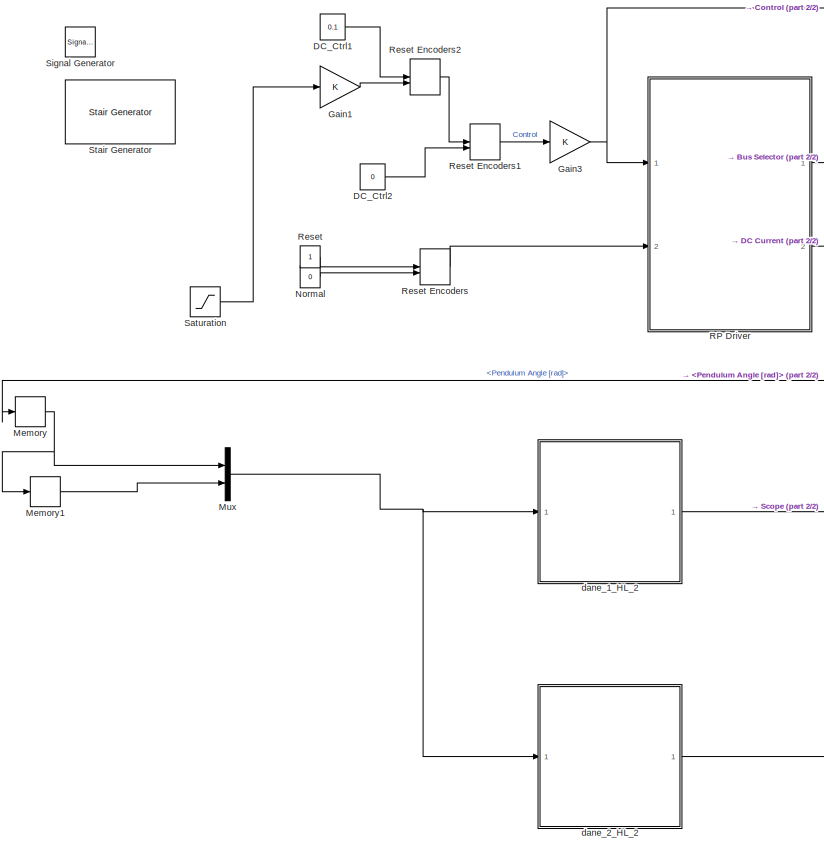
[diagram: root canvas - part 1/2, left side, full height]
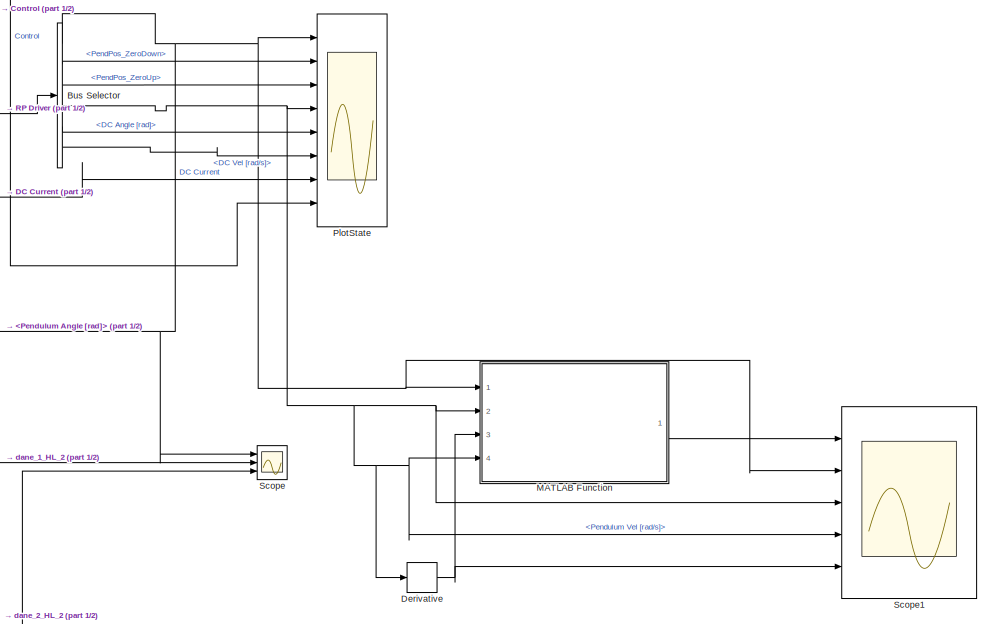
[diagram: root canvas - part 2/2, middle right region]
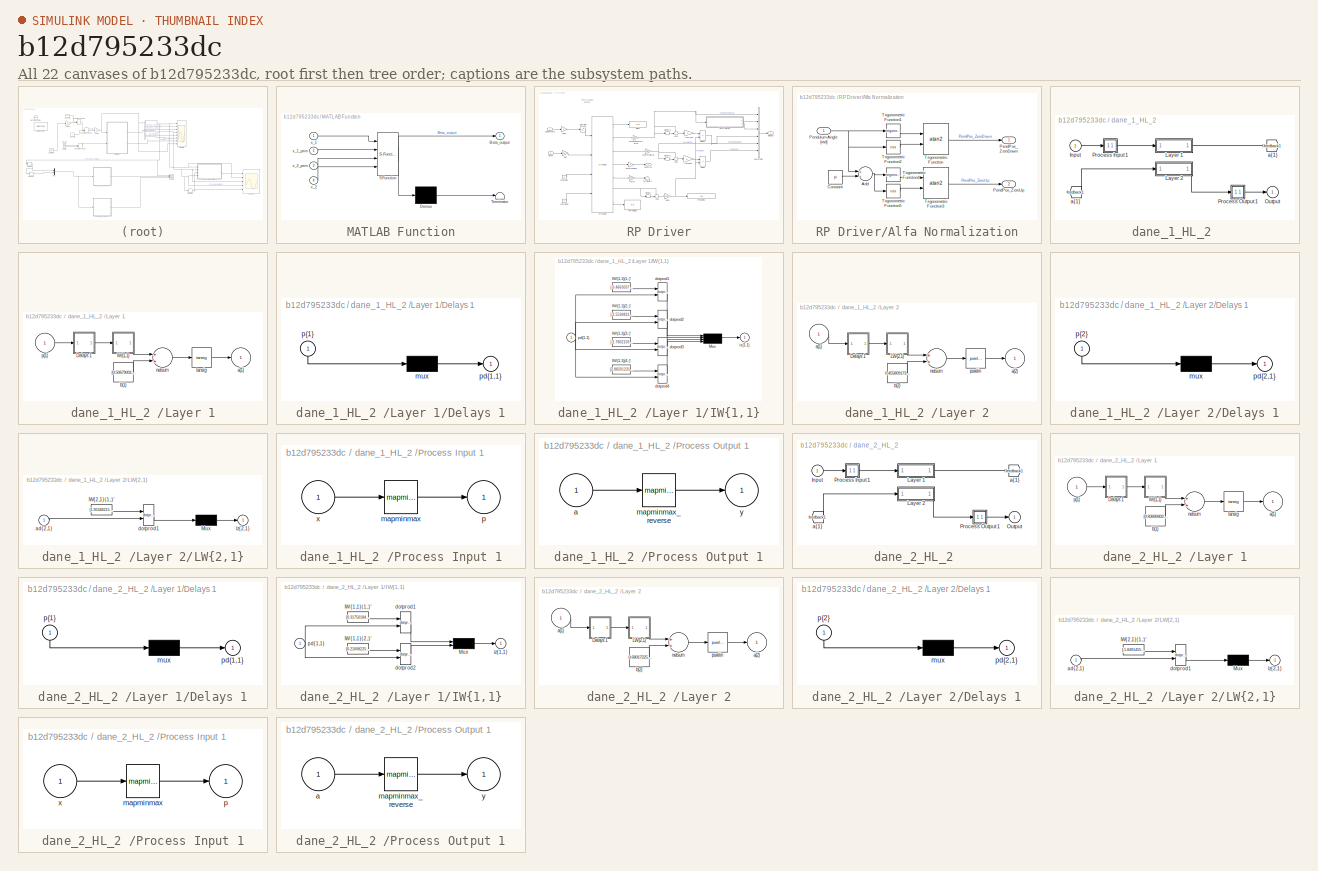
[diagram: thumbnail index - all 22 canvases of the model, root first then tree order]
MODEL slx_b12d795233dc
KIND model
CONFIG AbsTol = auto
CONFIG EnableMultiTasking = on
CONFIG FixedStep = 0.01
CONFIG MaxStep = auto
CONFIG MinStep = auto
CONFIG RelTol = 1e-3
CONFIG SampleTimeConstraint = Unconstrained
CONFIG Solver = FixedStepDiscrete
CONFIG SolverName = FixedStepDiscrete
CONFIG StartTime = 0.0
CONFIG StopTime = 999
BLOCK [BusSelector] Bus Selector
  OutputAsBus = off
  OutputSignals = Pendulum Angle [rad],PendPos_ZeroDown,PendPos_ZeroUp,Pendulum Vel [rad/s],DC Angle [rad],DC Vel [rad/s]
  Ports = [1, 6]
BLOCK [Constant] DC_Ctrl1
  Value = 0.1
BLOCK [Constant] DC_Ctrl2
  Value = 0
BLOCK [Derivative] Derivative
BLOCK [Gain] Gain1
  OutDataTypeStr = Inherit: Inherit via internal rule
  ParamDataTypeStr = Inherit: Inherit via internal rule
  SaturateOnIntegerOverflow = off
BLOCK [Gain] Gain3
  OutDataTypeStr = Inherit: Inherit via internal rule
  ParamDataTypeStr = Inherit: Inherit via internal rule
  SaturateOnIntegerOverflow = off
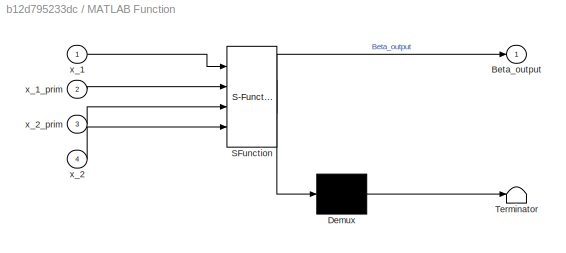
BLOCK [SubSystem] MATLAB Function
  ErrorFcn = Stateflow.Translate.translate
  PermitHierarchicalResolution = ExplicitOnly
  Ports = [4, 1]
  RequestExecContextInheritance = off
  SFBlockType = MATLAB Function
  TreatAsAtomicUnit = on
BLOCK [Demux] MATLAB Function/ Demux 
  Outputs = 1
  Ports = [1, 1]
BLOCK [S-Function] MATLAB Function/ SFunction 
  EnableBusSupport = on
  FunctionName = sf_sfun
  PortCounts = [4 2]
  Ports = [4, 2]
  SFcnIsStateOwnerBlock = off
  SFunctionDeploymentMode = off
  Tag = Stateflow S-Function rpdriver_with_nn 2
BLOCK [Terminator] MATLAB Function/ Terminator 
BLOCK [Outport] MATLAB Function/Beta_output
  IconDisplay = Port number
BLOCK [Inport] MATLAB Function/x_1
  IconDisplay = Port number
BLOCK [Inport] MATLAB Function/x_1_prim
  IconDisplay = Port number
  Port = 2
BLOCK [Inport] MATLAB Function/x_2
  IconDisplay = Port number
  Port = 4
BLOCK [Inport] MATLAB Function/x_2_prim
  IconDisplay = Port number
  Port = 3
BLOCK [Memory] Memory
BLOCK [Memory] Memory1
BLOCK [Mux] Mux
  DisplayOption = bar
  Inputs = 2
  Ports = [2, 1]
BLOCK [Constant] Normal
  Value = 0
BLOCK [Scope] PlotState
  Floating = off
  NumInputPorts = 8
  Ports = [8]
  ScopeSpecificationString = Simulink.scopes.TimeScopeBlockCfg('CurrentConfiguration', extmgr.ConfigurationSet(extmgr.Configuration('Core','General UI',true),extmgr.Configuration('Core','Source UI',true),extmgr.Configuration('Sources','WiredSimulink',true,'DataLoggingVariableName','dane_NN_liczenie_bety','DataLoggingSaveFormat','StructureWithTime','DataLoggingMaxPoints','12000','DataLoggingDecimation','1','DataLoggingDecimate...<+5921ch>
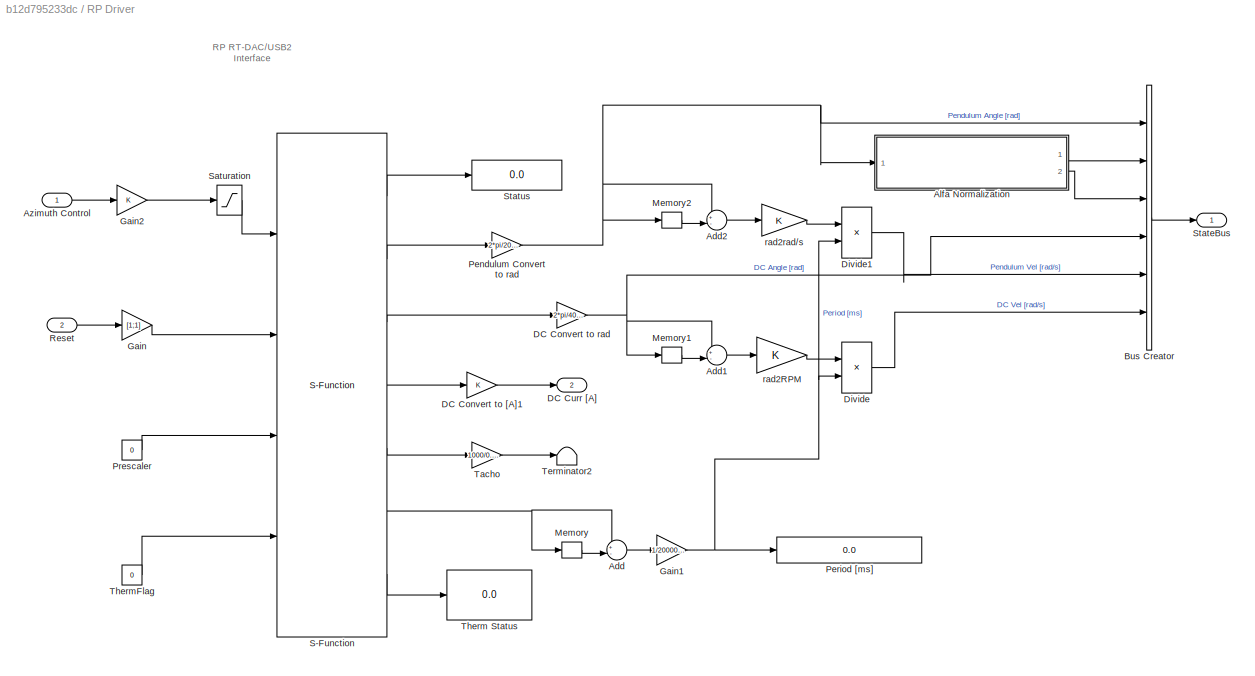
BLOCK [SubSystem] RP Driver
  Ports = [2, 2]
  RequestExecContextInheritance = off
BLOCK [Sum] RP Driver/Add
  IconShape = round
  InputSameDT = off
  Inputs = +-|
  OutDataTypeStr = Inherit: Inherit via internal rule
  Ports = [2, 1]
  SaturateOnIntegerOverflow = off
BLOCK [Sum] RP Driver/Add1
  IconShape = round
  InputSameDT = off
  Inputs = +-|
  OutDataTypeStr = Inherit: Inherit via internal rule
  Ports = [2, 1]
  SaturateOnIntegerOverflow = off
BLOCK [Sum] RP Driver/Add2
  IconShape = round
  InputSameDT = off
  Inputs = +-|
  OutDataTypeStr = Inherit: Inherit via internal rule
  Ports = [2, 1]
  SaturateOnIntegerOverflow = off
BLOCK [SubSystem] RP Driver/Alfa Normalization
  Ports = [1, 2]
  RequestExecContextInheritance = off
BLOCK [Sum] RP Driver/Alfa Normalization/Add
  InputSameDT = off
  OutDataTypeStr = Inherit: Inherit via internal rule
  Ports = [2, 1]
  SaturateOnIntegerOverflow = off
BLOCK [Constant] RP Driver/Alfa Normalization/Constant
  Value = pi
BLOCK [Outport] RP Driver/Alfa Normalization/PendPos_ZeroDown
  IconDisplay = Port number
BLOCK [Outport] RP Driver/Alfa Normalization/PendPos_ZeroUp
  IconDisplay = Port number
  Port = 2
BLOCK [Inport] RP Driver/Alfa Normalization/Pendulum Angle [rad]
  IconDisplay = Port number
BLOCK [Trigonometry] RP Driver/Alfa Normalization/Trigonometric Function
  Operator = atan2
  Ports = [2, 1]
BLOCK [Trigonometry] RP Driver/Alfa Normalization/Trigonometric Function1
  Ports = [1, 1]
BLOCK [Trigonometry] RP Driver/Alfa Normalization/Trigonometric Function2
  Operator = cos
  Ports = [1, 1]
BLOCK [Trigonometry] RP Driver/Alfa Normalization/Trigonometric Function3
  Operator = atan2
  Ports = [2, 1]
BLOCK [Trigonometry] RP Driver/Alfa Normalization/Trigonometric Function4
  Ports = [1, 1]
BLOCK [Trigonometry] RP Driver/Alfa Normalization/Trigonometric Function5
  Operator = cos
  Ports = [1, 1]
BLOCK [Inport] RP Driver/Azimuth Control
  IconDisplay = Port number
BLOCK [BusCreator] RP Driver/Bus Creator
  DisplayOption = bar
  InheritFromInputs = on
  Inputs = 6
  Ports = [6, 1]
BLOCK [Gain] RP Driver/DC Convert to [A]1
BLOCK [Gain] RP Driver/DC Convert to rad
  Gain = 2*pi/4096
BLOCK [Outport] RP Driver/DC Curr [A]
  IconDisplay = Port number
  Port = 2
BLOCK [Product] RP Driver/Divide
  InputSameDT = off
  Inputs = */
  OutDataTypeStr = Inherit: Inherit via internal rule
  Ports = [2, 1]
  RndMeth = Floor
  SaturateOnIntegerOverflow = off
BLOCK [Product] RP Driver/Divide1
  InputSameDT = off
  Inputs = */
  OutDataTypeStr = Inherit: Inherit via internal rule
  Ports = [2, 1]
  RndMeth = Floor
  SaturateOnIntegerOverflow = off
BLOCK [Gain] RP Driver/Gain
  Gain = [1;1]
  OutDataTypeStr = Inherit: Inherit via internal rule
  ParamDataTypeStr = Inherit: Inherit via internal rule
  SaturateOnIntegerOverflow = off
BLOCK [Gain] RP Driver/Gain1
  Gain = 1/20000000
  OutDataTypeStr = Inherit: Inherit via internal rule
  ParamDataTypeStr = Inherit: Inherit via internal rule
  SaturateOnIntegerOverflow = off
BLOCK [Gain] RP Driver/Gain2
  OutDataTypeStr = Inherit: Inherit via internal rule
  ParamDataTypeStr = Inherit: Inherit via internal rule
  SaturateOnIntegerOverflow = off
BLOCK [Memory] RP Driver/Memory
BLOCK [Memory] RP Driver/Memory1
BLOCK [Memory] RP Driver/Memory2
BLOCK [Gain] RP Driver/Pendulum Convert to rad
  Gain = 2*pi/20000
BLOCK [Display] RP Driver/Period [ms]
  Decimation = 1
  Format = long
  Ports = [1]
BLOCK [Constant] RP Driver/Prescaler
  Value = 0
BLOCK [Inport] RP Driver/Reset
  IconDisplay = Port number
  Port = 2
BLOCK [S-Function] RP Driver/S-Function
  EnableBusSupport = off
  FunctionName = rtdacusb2_rpend_dd
  Parameters = 1, 0.01
  Ports = [4, 7]
  SFcnIsStateOwnerBlock = off
  SFunctionDeploymentMode = off
BLOCK [Saturate] RP Driver/Saturation
  InputPortMap = u0
  LowerLimit = -1
  Ports = [1, 1]
  UpperLimit = 1
BLOCK [Outport] RP Driver/StateBus
  IconDisplay = Port number
BLOCK [Display] RP Driver/Status
  Decimation = 1
  Ports = [1]
BLOCK [Gain] RP Driver/Tacho
  Gain = 1000/0.52
BLOCK [Terminator] RP Driver/Terminator2
BLOCK [Display] RP Driver/Therm Status
  Decimation = 1
  Ports = [1]
BLOCK [Constant] RP Driver/ThermFlag
  Value = 0
BLOCK [Gain] RP Driver/rad2RPM
BLOCK [Gain] RP Driver/rad2rad//s
BLOCK [Constant] Reset
BLOCK [ManualSwitch] Reset Encoders
  CurrentSetting = 0
BLOCK [ManualSwitch] Reset Encoders1
  CurrentSetting = 0
BLOCK [ManualSwitch] Reset Encoders2
  CurrentSetting = 0
BLOCK [Saturate] Saturation
  InputPortMap = u0
  LowerLimit = -0.9
  Ports = [1, 1]
  UpperLimit = 0.9
BLOCK [Scope] Scope
  Floating = off
  NumInputPorts = 3
  Ports = [3]
  ScopeSpecificationString = Simulink.scopes.TimeScopeBlockCfg('CurrentConfiguration', extmgr.ConfigurationSet(extmgr.Configuration('Core','General UI',true),extmgr.Configuration('Core','Source UI',true),extmgr.Configuration('Sources','WiredSimulink',true,'DataLoggingVariableName','walidacja_modelu_sieci','DataLogging',true,'DataLoggingSaveFormat','StructureWithTime'),extmgr.Configuration('Visuals','Time Domain',true,'Seriali...<+1558ch>
BLOCK [Scope] Scope1
  Floating = off
  NumInputPorts = 5
  Ports = [5]
  ScopeSpecificationString = Simulink.scopes.TimeScopeBlockCfg('CurrentConfiguration', extmgr.ConfigurationSet(extmgr.Configuration('Core','General UI',true),extmgr.Configuration('Core','Source UI',true),extmgr.Configuration('Sources','WiredSimulink',true,'DataLoggingVariableName','ScopeData1'),extmgr.Configuration('Visuals','Time Domain',true,'SerializedDisplays',{struct('MinYLimReal','-59.93343','MaxYLimReal','143.38714','Y...<+6196ch>
BLOCK [SignalGenerator] Signal Generator
  Amplitude = 0.25
  Frequency = 1/9
  Ports = [0, 1]
  WaveForm = square
BLOCK [Reference] Stair Generator  REF=powerlib_meascontrol/Pulse & Signal
Generators/Stair
Generator
  Commented = on
  Ports = [0, 1]
  SourceBlock = powerlib_meascontrol/Pulse & Signal\nGenerators/Stair\nGenerator
  SourceProductBaseCode = PS
  SourceProductName = Simscape Power Systems
  SourceType = Stair Generator
BLOCK [SubSystem] dane_1_HL_2 
  Ports = [1, 1]
  RequestExecContextInheritance = off
BLOCK [From] dane_1_HL_2 / a{1} 
  GotoTag = feedback1
BLOCK [Inport] dane_1_HL_2 /Input
  IconDisplay = Port number
  PortDimensions = 2
  SampleTime = 0.01
BLOCK [SubSystem] dane_1_HL_2 /Layer 1
  Ports = [1, 1]
  RequestExecContextInheritance = off
BLOCK [SubSystem] dane_1_HL_2 /Layer 1/Delays 1
  Ports = [1, 1]
  RequestExecContextInheritance = off
BLOCK [Mux] dane_1_HL_2 /Layer 1/Delays 1/mux
  Inputs = 1
  Ports = [1, 1]
BLOCK [Outport] dane_1_HL_2 /Layer 1/Delays 1/pd{1,1}
  IconDisplay = Port number
BLOCK [Inport] dane_1_HL_2 /Layer 1/Delays 1/p{1}
  IconDisplay = Port number
  PortDimensions = 2
  SampleTime = 0.01
BLOCK [SubSystem] dane_1_HL_2 /Layer 1/IW{1,1}
  Ports = [1, 1]
  RequestExecContextInheritance = off
BLOCK [Constant] dane_1_HL_2 /Layer 1/IW{1,1}/IW{1,1}(1,:)'
  Value = [-0.466303739642262293774166437287931330502033233642578125;0.96594306525236850458071558023220859467983245849609375]
BLOCK [Constant] dane_1_HL_2 /Layer 1/IW{1,1}/IW{1,1}(2,:)'
  Value = [-1.55268314583509603465927284560166299343109130859375;2.943114096559206860348467671428807079792022705078125]
BLOCK [Constant] dane_1_HL_2 /Layer 1/IW{1,1}/IW{1,1}(3,:)'
  Value = [-1.780215091870313681710058517637662589550018310546875;-0.659402923602290247373503007111139595508575439453125]
BLOCK [Constant] dane_1_HL_2 /Layer 1/IW{1,1}/IW{1,1}(4,:)'
  Value = [2.88201231265911861356698864256031811237335205078125;-0.683979171490019410839522606693208217620849609375]
BLOCK [Mux] dane_1_HL_2 /Layer 1/IW{1,1}/Mux
  Ports = [4, 1]
BLOCK [Reference] dane_1_HL_2 /Layer 1/IW{1,1}/dotprod1  REF=neural/Weight Functions/dotprod
  Ports = [2, 1]
  SourceBlock = neural/Weight Functions/dotprod
  SourceProductBaseCode = NN
  SourceProductName = Neural Network Toolbox
  SourceType = DOTPROD
BLOCK [Reference] dane_1_HL_2 /Layer 1/IW{1,1}/dotprod2  REF=neural/Weight Functions/dotprod
  Ports = [2, 1]
  SourceBlock = neural/Weight Functions/dotprod
  SourceProductBaseCode = NN
  SourceProductName = Neural Network Toolbox
  SourceType = DOTPROD
BLOCK [Reference] dane_1_HL_2 /Layer 1/IW{1,1}/dotprod3  REF=neural/Weight Functions/dotprod
  Ports = [2, 1]
  SourceBlock = neural/Weight Functions/dotprod
  SourceProductBaseCode = NN
  SourceProductName = Neural Network Toolbox
  SourceType = DOTPROD
BLOCK [Reference] dane_1_HL_2 /Layer 1/IW{1,1}/dotprod4  REF=neural/Weight Functions/dotprod
  Ports = [2, 1]
  SourceBlock = neural/Weight Functions/dotprod
  SourceProductBaseCode = NN
  SourceProductName = Neural Network Toolbox
  SourceType = DOTPROD
BLOCK [Outport] dane_1_HL_2 /Layer 1/IW{1,1}/iz{1,1}
  IconDisplay = Port number
BLOCK [Inport] dane_1_HL_2 /Layer 1/IW{1,1}/pd{1,1}
  IconDisplay = Port number
  PortDimensions = 2
  SampleTime = 0.01
BLOCK [Outport] dane_1_HL_2 /Layer 1/a{1}
  IconDisplay = Port number
  InitialOutput = [0;0;0;0]
BLOCK [Constant] dane_1_HL_2 /Layer 1/b{1}
  Value = [0.5067900146138837325082704410306178033351898193359375;-0.86413407894146565535464787899400107562541961669921875;-0.39424585760358177299877979748998768627643585205078125;-3.8565998867119173354467420722357928752899169921875]
BLOCK [Sum] dane_1_HL_2 /Layer 1/netsum
  Inputs = 2
  Ports = [2, 1]
BLOCK [Inport] dane_1_HL_2 /Layer 1/p{1}
  IconDisplay = Port number
  PortDimensions = 2
  SampleTime = 0.01
BLOCK [Reference] dane_1_HL_2 /Layer 1/tansig  REF=neural/Transfer Functions/tansig
  Ports = [1, 1]
  SourceBlock = neural/Transfer Functions/tansig
  SourceProductBaseCode = NN
  SourceProductName = Neural Network Toolbox
  SourceType = TANSIG
BLOCK [SubSystem] dane_1_HL_2 /Layer 2
  Ports = [1, 1]
  RequestExecContextInheritance = off
BLOCK [SubSystem] dane_1_HL_2 /Layer 2/Delays 1
  Ports = [1, 1]
  RequestExecContextInheritance = off
BLOCK [Mux] dane_1_HL_2 /Layer 2/Delays 1/mux
  Inputs = 1
  Ports = [1, 1]
BLOCK [Outport] dane_1_HL_2 /Layer 2/Delays 1/pd{2,1}
  IconDisplay = Port number
BLOCK [Inport] dane_1_HL_2 /Layer 2/Delays 1/p{2}
  IconDisplay = Port number
  PortDimensions = 4
  SampleTime = 0.01
BLOCK [SubSystem] dane_1_HL_2 /Layer 2/LW{2,1}
  Ports = [1, 1]
  RequestExecContextInheritance = off
BLOCK [Constant] dane_1_HL_2 /Layer 2/LW{2,1}/IW{2,1}(1,:)'
  Value = [1.9534821513318345598264613727224059402942657470703125;0.2772406769403119586314687694539315998554229736328125;-0.0161124272243524553627214146445112419314682483673095703125;1.182343962777292478705248868209309875965118408203125]
BLOCK [Mux] dane_1_HL_2 /Layer 2/LW{2,1}/Mux
  Inputs = 1
  Ports = [1, 1]
BLOCK [Inport] dane_1_HL_2 /Layer 2/LW{2,1}/ad{2,1}
  IconDisplay = Port number
  PortDimensions = 4
  SampleTime = 0.01
BLOCK [Reference] dane_1_HL_2 /Layer 2/LW{2,1}/dotprod1  REF=neural/Weight Functions/dotprod
  Ports = [2, 1]
  SourceBlock = neural/Weight Functions/dotprod
  SourceProductBaseCode = NN
  SourceProductName = Neural Network Toolbox
  SourceType = DOTPROD
BLOCK [Outport] dane_1_HL_2 /Layer 2/LW{2,1}/lz{2,1}
  IconDisplay = Port number
BLOCK [Inport] dane_1_HL_2 /Layer 2/a{1} 
  IconDisplay = Port number
  PortDimensions = 4
  SampleTime = 0.01
BLOCK [Outport] dane_1_HL_2 /Layer 2/a{2}
  IconDisplay = Port number
  InitialOutput = 0
BLOCK [Constant] dane_1_HL_2 /Layer 2/b{2}
  Value = 0.455809173642511555879508478028583340346813201904296875
BLOCK [Sum] dane_1_HL_2 /Layer 2/netsum
  Inputs = 2
  Ports = [2, 1]
BLOCK [Reference] dane_1_HL_2 /Layer 2/purelin  REF=neural/Transfer Functions/purelin
  Ports = [1, 1]
  SourceBlock = neural/Transfer Functions/purelin
  SourceProductBaseCode = NN
  SourceProductName = Neural Network Toolbox
  SourceType = PURELIN
BLOCK [Outport] dane_1_HL_2 /Output
  IconDisplay = Port number
  InitialOutput = 0
BLOCK [SubSystem] dane_1_HL_2 /Process Input 1
  Ports = [1, 1]
  RequestExecContextInheritance = off
BLOCK [Reference] dane_1_HL_2 /Process Input 1/mapminmax  REF=neural/Processing Functions/mapminmax
  Ports = [1, 1]
  SourceBlock = neural/Processing Functions/mapminmax
  SourceProductBaseCode = NN
  SourceProductName = Neural Network Toolbox
  SourceType = MAPMINMAX Preprocess
BLOCK [Outport] dane_1_HL_2 /Process Input 1/p
  IconDisplay = Port number
  PortDimensions = 2
  SampleTime = 0.01
BLOCK [Inport] dane_1_HL_2 /Process Input 1/x
  IconDisplay = Port number
  PortDimensions = 2
  SampleTime = 0.01
BLOCK [SubSystem] dane_1_HL_2 /Process Output 1
  Ports = [1, 1]
  RequestExecContextInheritance = off
BLOCK [Inport] dane_1_HL_2 /Process Output 1/a
  IconDisplay = Port number
  PortDimensions = 1
  SampleTime = 0.01
BLOCK [Reference] dane_1_HL_2 /Process Output 1/mapminmax_reverse  REF=neural/Processing Functions/mapminmax_reverse
  Ports = [1, 1]
  SourceBlock = neural/Processing Functions/mapminmax_reverse
  SourceProductBaseCode = NN
  SourceProductName = Neural Network Toolbox
  SourceType = MAPMINMAX Reverse Process
BLOCK [Outport] dane_1_HL_2 /Process Output 1/y
  IconDisplay = Port number
  PortDimensions = 1
  SampleTime = 0.01
BLOCK [Goto] dane_1_HL_2 /a{1}
  GotoTag = feedback1
BLOCK [SubSystem] dane_2_HL_2 
  Ports = [1, 1]
  RequestExecContextInheritance = off
BLOCK [From] dane_2_HL_2 / a{1} 
  GotoTag = feedback1
BLOCK [Inport] dane_2_HL_2 /Input
  IconDisplay = Port number
  PortDimensions = 2
  SampleTime = 0.01
BLOCK [SubSystem] dane_2_HL_2 /Layer 1
  Ports = [1, 1]
  RequestExecContextInheritance = off
BLOCK [SubSystem] dane_2_HL_2 /Layer 1/Delays 1
  Ports = [1, 1]
  RequestExecContextInheritance = off
BLOCK [Mux] dane_2_HL_2 /Layer 1/Delays 1/mux
  Inputs = 1
  Ports = [1, 1]
BLOCK [Outport] dane_2_HL_2 /Layer 1/Delays 1/pd{1,1}
  IconDisplay = Port number
BLOCK [Inport] dane_2_HL_2 /Layer 1/Delays 1/p{1}
  IconDisplay = Port number
  PortDimensions = 2
  SampleTime = 0.01
BLOCK [SubSystem] dane_2_HL_2 /Layer 1/IW{1,1}
  Ports = [1, 1]
  RequestExecContextInheritance = off
BLOCK [Constant] dane_2_HL_2 /Layer 1/IW{1,1}/IW{1,1}(1,:)'
  Value = [0.317501847104528611698270879060146398842334747314453125;-0.63437724697761022074615766541683115065097808837890625]
BLOCK [Constant] dane_2_HL_2 /Layer 1/IW{1,1}/IW{1,1}(2,:)'
  Value = [0.2100822536402155715773432120840880088508129119873046875;-0.420616928478684315440006002972950227558612823486328125]
BLOCK [Mux] dane_2_HL_2 /Layer 1/IW{1,1}/Mux
  Inputs = 2
  Ports = [2, 1]
BLOCK [Reference] dane_2_HL_2 /Layer 1/IW{1,1}/dotprod1  REF=neural/Weight Functions/dotprod
  Ports = [2, 1]
  SourceBlock = neural/Weight Functions/dotprod
  SourceProductBaseCode = NN
  SourceProductName = Neural Network Toolbox
  SourceType = DOTPROD
BLOCK [Reference] dane_2_HL_2 /Layer 1/IW{1,1}/dotprod2  REF=neural/Weight Functions/dotprod
  Ports = [2, 1]
  SourceBlock = neural/Weight Functions/dotprod
  SourceProductBaseCode = NN
  SourceProductName = Neural Network Toolbox
  SourceType = DOTPROD
BLOCK [Outport] dane_2_HL_2 /Layer 1/IW{1,1}/iz{1,1}
  IconDisplay = Port number
BLOCK [Inport] dane_2_HL_2 /Layer 1/IW{1,1}/pd{1,1}
  IconDisplay = Port number
  PortDimensions = 2
  SampleTime = 0.01
BLOCK [Outport] dane_2_HL_2 /Layer 1/a{1}
  IconDisplay = Port number
  InitialOutput = [0;0]
BLOCK [Constant] dane_2_HL_2 /Layer 1/b{1}
  Value = [0.83689402231300424883642108397907577455043792724609375;-0.50502772206030532853304748641676269471645355224609375]
BLOCK [Sum] dane_2_HL_2 /Layer 1/netsum
  Inputs = 2
  Ports = [2, 1]
BLOCK [Inport] dane_2_HL_2 /Layer 1/p{1}
  IconDisplay = Port number
  PortDimensions = 2
  SampleTime = 0.01
BLOCK [Reference] dane_2_HL_2 /Layer 1/tansig  REF=neural/Transfer Functions/tansig
  Ports = [1, 1]
  SourceBlock = neural/Transfer Functions/tansig
  SourceProductBaseCode = NN
  SourceProductName = Neural Network Toolbox
  SourceType = TANSIG
BLOCK [SubSystem] dane_2_HL_2 /Layer 2
  Ports = [1, 1]
  RequestExecContextInheritance = off
BLOCK [SubSystem] dane_2_HL_2 /Layer 2/Delays 1
  Ports = [1, 1]
  RequestExecContextInheritance = off
BLOCK [Mux] dane_2_HL_2 /Layer 2/Delays 1/mux
  Inputs = 1
  Ports = [1, 1]
BLOCK [Outport] dane_2_HL_2 /Layer 2/Delays 1/pd{2,1}
  IconDisplay = Port number
BLOCK [Inport] dane_2_HL_2 /Layer 2/Delays 1/p{2}
  IconDisplay = Port number
  PortDimensions = 2
  SampleTime = 0.01
BLOCK [SubSystem] dane_2_HL_2 /Layer 2/LW{2,1}
  Ports = [1, 1]
  RequestExecContextInheritance = off
BLOCK [Constant] dane_2_HL_2 /Layer 2/LW{2,1}/IW{2,1}(1,:)'
  Value = [-1.84914557638342191836500205681659281253814697265625;-4.173814275745581170440345886163413524627685546875]
BLOCK [Mux] dane_2_HL_2 /Layer 2/LW{2,1}/Mux
  Inputs = 1
  Ports = [1, 1]
BLOCK [Inport] dane_2_HL_2 /Layer 2/LW{2,1}/ad{2,1}
  IconDisplay = Port number
  PortDimensions = 2
  SampleTime = 0.01
BLOCK [Reference] dane_2_HL_2 /Layer 2/LW{2,1}/dotprod1  REF=neural/Weight Functions/dotprod
  Ports = [2, 1]
  SourceBlock = neural/Weight Functions/dotprod
  SourceProductBaseCode = NN
  SourceProductName = Neural Network Toolbox
  SourceType = DOTPROD
BLOCK [Outport] dane_2_HL_2 /Layer 2/LW{2,1}/lz{2,1}
  IconDisplay = Port number
BLOCK [Inport] dane_2_HL_2 /Layer 2/a{1} 
  IconDisplay = Port number
  PortDimensions = 2
  SampleTime = 0.01
BLOCK [Outport] dane_2_HL_2 /Layer 2/a{2}
  IconDisplay = Port number
  InitialOutput = 0
BLOCK [Constant] dane_2_HL_2 /Layer 2/b{2}
  Value = -0.6801722526561981840842463498120196163654327392578125
BLOCK [Sum] dane_2_HL_2 /Layer 2/netsum
  Inputs = 2
  Ports = [2, 1]
BLOCK [Reference] dane_2_HL_2 /Layer 2/purelin  REF=neural/Transfer Functions/purelin
  Ports = [1, 1]
  SourceBlock = neural/Transfer Functions/purelin
  SourceProductBaseCode = NN
  SourceProductName = Neural Network Toolbox
  SourceType = PURELIN
BLOCK [Outport] dane_2_HL_2 /Output
  IconDisplay = Port number
  InitialOutput = 0
BLOCK [SubSystem] dane_2_HL_2 /Process Input 1
  Ports = [1, 1]
  RequestExecContextInheritance = off
BLOCK [Reference] dane_2_HL_2 /Process Input 1/mapminmax  REF=neural/Processing Functions/mapminmax
  Ports = [1, 1]
  SourceBlock = neural/Processing Functions/mapminmax
  SourceProductBaseCode = NN
  SourceProductName = Neural Network Toolbox
  SourceType = MAPMINMAX Preprocess
BLOCK [Outport] dane_2_HL_2 /Process Input 1/p
  IconDisplay = Port number
  PortDimensions = 2
  SampleTime = 0.01
BLOCK [Inport] dane_2_HL_2 /Process Input 1/x
  IconDisplay = Port number
  PortDimensions = 2
  SampleTime = 0.01
BLOCK [SubSystem] dane_2_HL_2 /Process Output 1
  Ports = [1, 1]
  RequestExecContextInheritance = off
BLOCK [Inport] dane_2_HL_2 /Process Output 1/a
  IconDisplay = Port number
  PortDimensions = 1
  SampleTime = 0.01
BLOCK [Reference] dane_2_HL_2 /Process Output 1/mapminmax_reverse  REF=neural/Processing Functions/mapminmax_reverse
  Ports = [1, 1]
  SourceBlock = neural/Processing Functions/mapminmax_reverse
  SourceProductBaseCode = NN
  SourceProductName = Neural Network Toolbox
  SourceType = MAPMINMAX Reverse Process
BLOCK [Outport] dane_2_HL_2 /Process Output 1/y
  IconDisplay = Port number
  PortDimensions = 1
  SampleTime = 0.01
BLOCK [Goto] dane_2_HL_2 /a{1}
  GotoTag = feedback1
ANNOTATION RP Driver: RP RT-DAC/USB2 Interface
NET Bus Selector:1 -> MATLAB Function:1, Memory:1, PlotState:1, Scope1:2, Scope:1
LINE Bus Selector:2 -> PlotState:2
LINE Bus Selector:3 -> PlotState:3
NET Bus Selector:4 -> Derivative:1, MATLAB Function:2, MATLAB Function:4, PlotState:4, Scope1:3, Scope1:4
LINE Bus Selector:5 -> PlotState:5
LINE Bus Selector:6 -> PlotState:6
LINE DC_Ctrl1:1 -> Reset Encoders2:1
LINE DC_Ctrl2:1 -> Reset Encoders1:2
NET Derivative:1 -> MATLAB Function:3, Scope1:5
LINE Gain1:1 -> Reset Encoders2:2
NET Gain3:1 -> PlotState:8, RP Driver:1
LINE MATLAB Function:1 -> Scope1:1
LINE Memory1:1 -> Mux:2
NET Memory:1 -> Memory1:1, Mux:1
NET Mux:1 -> dane_1_HL_2 :1, dane_2_HL_2 :1
LINE Normal:1 -> Reset Encoders:2
LINE RP Driver/Add1:1 -> RP Driver/rad2RPM:1
LINE RP Driver/Add2:1 -> RP Driver/rad2rad//s:1
LINE RP Driver/Add:1 -> RP Driver/Gain1:1
NET RP Driver/Alfa Normalization/Add:1 -> RP Driver/Alfa Normalization/Trigonometric Function4:1, RP Driver/Alfa Normalization/Trigonometric Function5:1
LINE RP Driver/Alfa Normalization/Constant:1 -> RP Driver/Alfa Normalization/Add:2
NET RP Driver/Alfa Normalization/Pendulum Angle [rad]:1 -> RP Driver/Alfa Normalization/Add:1, RP Driver/Alfa Normalization/Trigonometric Function1:1, RP Driver/Alfa Normalization/Trigonometric Function2:1
LINE RP Driver/Alfa Normalization/Trigonometric Function1:1 -> RP Driver/Alfa Normalization/Trigonometric Function:1
LINE RP Driver/Alfa Normalization/Trigonometric Function2:1 -> RP Driver/Alfa Normalization/Trigonometric Function:2
LINE RP Driver/Alfa Normalization/Trigonometric Function3:1 -> RP Driver/Alfa Normalization/PendPos_ZeroUp:1
LINE RP Driver/Alfa Normalization/Trigonometric Function4:1 -> RP Driver/Alfa Normalization/Trigonometric Function3:1
LINE RP Driver/Alfa Normalization/Trigonometric Function5:1 -> RP Driver/Alfa Normalization/Trigonometric Function3:2
LINE RP Driver/Alfa Normalization/Trigonometric Function:1 -> RP Driver/Alfa Normalization/PendPos_ZeroDown:1
LINE RP Driver/Alfa Normalization:1 -> RP Driver/Bus Creator:2
LINE RP Driver/Alfa Normalization:2 -> RP Driver/Bus Creator:3
LINE RP Driver/Azimuth Control:1 -> RP Driver/Gain2:1
LINE RP Driver/Bus Creator:1 -> RP Driver/StateBus:1
LINE RP Driver/DC Convert to [A]1:1 -> RP Driver/DC Curr [A]:1
NET RP Driver/DC Convert to rad:1 -> RP Driver/Add1:1, RP Driver/Bus Creator:4, RP Driver/Memory1:1
LINE RP Driver/Divide1:1 -> RP Driver/Bus Creator:5
LINE RP Driver/Divide:1 -> RP Driver/Bus Creator:6
NET RP Driver/Gain1:1 -> RP Driver/Divide1:2, RP Driver/Divide:2, RP Driver/Period [ms]:1
LINE RP Driver/Gain2:1 -> RP Driver/Saturation:1
LINE RP Driver/Gain:1 -> RP Driver/S-Function:2
LINE RP Driver/Memory1:1 -> RP Driver/Add1:2
LINE RP Driver/Memory2:1 -> RP Driver/Add2:2
LINE RP Driver/Memory:1 -> RP Driver/Add:2
NET RP Driver/Pendulum Convert to rad:1 -> RP Driver/Add2:1, RP Driver/Alfa Normalization:1, RP Driver/Bus Creator:1, RP Driver/Memory2:1
LINE RP Driver/Prescaler:1 -> RP Driver/S-Function:3
LINE RP Driver/Reset:1 -> RP Driver/Gain:1
LINE RP Driver/S-Function:1 -> RP Driver/Status:1
LINE RP Driver/S-Function:2 -> RP Driver/Pendulum Convert to rad:1
LINE RP Driver/S-Function:3 -> RP Driver/DC Convert to rad:1
LINE RP Driver/S-Function:4 -> RP Driver/DC Convert to [A]1:1
LINE RP Driver/S-Function:5 -> RP Driver/Tacho:1
NET RP Driver/S-Function:6 -> RP Driver/Add:1, RP Driver/Memory:1
LINE RP Driver/S-Function:7 -> RP Driver/Therm Status:1
LINE RP Driver/Saturation:1 -> RP Driver/S-Function:1
LINE RP Driver/Tacho:1 -> RP Driver/Terminator2:1
LINE RP Driver/ThermFlag:1 -> RP Driver/S-Function:4
LINE RP Driver/rad2RPM:1 -> RP Driver/Divide:1
LINE RP Driver/rad2rad//s:1 -> RP Driver/Divide1:1
LINE RP Driver:1 -> Bus Selector:1
LINE RP Driver:2 -> PlotState:7
LINE Reset Encoders1:1 -> Gain3:1
LINE Reset Encoders2:1 -> Reset Encoders1:1
LINE Reset Encoders:1 -> RP Driver:2
LINE Reset:1 -> Reset Encoders:1
LINE Saturation:1 -> Gain1:1
LINE dane_1_HL_2 / a{1} :1 -> dane_1_HL_2 /Layer 2:1
LINE dane_1_HL_2 /Input:1 -> dane_1_HL_2 /Process Input 1:1
LINE dane_1_HL_2 /Layer 1/Delays 1/mux:1 -> dane_1_HL_2 /Layer 1/Delays 1/pd{1,1}:1
LINE dane_1_HL_2 /Layer 1/Delays 1/p{1}:1 -> dane_1_HL_2 /Layer 1/Delays 1/mux:1
LINE dane_1_HL_2 /Layer 1/Delays 1:1 -> dane_1_HL_2 /Layer 1/IW{1,1}:1
LINE dane_1_HL_2 /Layer 1/IW{1,1}/IW{1,1}(1,:)':1 -> dane_1_HL_2 /Layer 1/IW{1,1}/dotprod1:1
LINE dane_1_HL_2 /Layer 1/IW{1,1}/IW{1,1}(2,:)':1 -> dane_1_HL_2 /Layer 1/IW{1,1}/dotprod2:1
LINE dane_1_HL_2 /Layer 1/IW{1,1}/IW{1,1}(3,:)':1 -> dane_1_HL_2 /Layer 1/IW{1,1}/dotprod3:1
LINE dane_1_HL_2 /Layer 1/IW{1,1}/IW{1,1}(4,:)':1 -> dane_1_HL_2 /Layer 1/IW{1,1}/dotprod4:1
LINE dane_1_HL_2 /Layer 1/IW{1,1}/Mux:1 -> dane_1_HL_2 /Layer 1/IW{1,1}/iz{1,1}:1
LINE dane_1_HL_2 /Layer 1/IW{1,1}/dotprod1:1 -> dane_1_HL_2 /Layer 1/IW{1,1}/Mux:1
LINE dane_1_HL_2 /Layer 1/IW{1,1}/dotprod2:1 -> dane_1_HL_2 /Layer 1/IW{1,1}/Mux:2
LINE dane_1_HL_2 /Layer 1/IW{1,1}/dotprod3:1 -> dane_1_HL_2 /Layer 1/IW{1,1}/Mux:3
LINE dane_1_HL_2 /Layer 1/IW{1,1}/dotprod4:1 -> dane_1_HL_2 /Layer 1/IW{1,1}/Mux:4
NET dane_1_HL_2 /Layer 1/IW{1,1}/pd{1,1}:1 -> dane_1_HL_2 /Layer 1/IW{1,1}/dotprod1:2, dane_1_HL_2 /Layer 1/IW{1,1}/dotprod2:2, dane_1_HL_2 /Layer 1/IW{1,1}/dotprod3:2, dane_1_HL_2 /Layer 1/IW{1,1}/dotprod4:2
LINE dane_1_HL_2 /Layer 1/IW{1,1}:1 -> dane_1_HL_2 /Layer 1/netsum:1
LINE dane_1_HL_2 /Layer 1/b{1}:1 -> dane_1_HL_2 /Layer 1/netsum:2
LINE dane_1_HL_2 /Layer 1/netsum:1 -> dane_1_HL_2 /Layer 1/tansig:1
LINE dane_1_HL_2 /Layer 1/p{1}:1 -> dane_1_HL_2 /Layer 1/Delays 1:1
LINE dane_1_HL_2 /Layer 1/tansig:1 -> dane_1_HL_2 /Layer 1/a{1}:1
LINE dane_1_HL_2 /Layer 1:1 -> dane_1_HL_2 /a{1}:1
LINE dane_1_HL_2 /Layer 2/Delays 1/mux:1 -> dane_1_HL_2 /Layer 2/Delays 1/pd{2,1}:1
LINE dane_1_HL_2 /Layer 2/Delays 1/p{2}:1 -> dane_1_HL_2 /Layer 2/Delays 1/mux:1
LINE dane_1_HL_2 /Layer 2/Delays 1:1 -> dane_1_HL_2 /Layer 2/LW{2,1}:1
LINE dane_1_HL_2 /Layer 2/LW{2,1}/IW{2,1}(1,:)':1 -> dane_1_HL_2 /Layer 2/LW{2,1}/dotprod1:1
LINE dane_1_HL_2 /Layer 2/LW{2,1}/Mux:1 -> dane_1_HL_2 /Layer 2/LW{2,1}/lz{2,1}:1
LINE dane_1_HL_2 /Layer 2/LW{2,1}/ad{2,1}:1 -> dane_1_HL_2 /Layer 2/LW{2,1}/dotprod1:2
LINE dane_1_HL_2 /Layer 2/LW{2,1}/dotprod1:1 -> dane_1_HL_2 /Layer 2/LW{2,1}/Mux:1
LINE dane_1_HL_2 /Layer 2/LW{2,1}:1 -> dane_1_HL_2 /Layer 2/netsum:1
LINE dane_1_HL_2 /Layer 2/a{1} :1 -> dane_1_HL_2 /Layer 2/Delays 1:1
LINE dane_1_HL_2 /Layer 2/b{2}:1 -> dane_1_HL_2 /Layer 2/netsum:2
LINE dane_1_HL_2 /Layer 2/netsum:1 -> dane_1_HL_2 /Layer 2/purelin:1
LINE dane_1_HL_2 /Layer 2/purelin:1 -> dane_1_HL_2 /Layer 2/a{2}:1
LINE dane_1_HL_2 /Layer 2:1 -> dane_1_HL_2 /Process Output 1:1
LINE dane_1_HL_2 /Process Input 1/mapminmax:1 -> dane_1_HL_2 /Process Input 1/p:1
LINE dane_1_HL_2 /Process Input 1/x:1 -> dane_1_HL_2 /Process Input 1/mapminmax:1
LINE dane_1_HL_2 /Process Input 1:1 -> dane_1_HL_2 /Layer 1:1
LINE dane_1_HL_2 /Process Output 1/a:1 -> dane_1_HL_2 /Process Output 1/mapminmax_reverse:1
LINE dane_1_HL_2 /Process Output 1/mapminmax_reverse:1 -> dane_1_HL_2 /Process Output 1/y:1
LINE dane_1_HL_2 /Process Output 1:1 -> dane_1_HL_2 /Output:1
LINE dane_1_HL_2 :1 -> Scope:2
LINE dane_2_HL_2 / a{1} :1 -> dane_2_HL_2 /Layer 2:1
LINE dane_2_HL_2 /Input:1 -> dane_2_HL_2 /Process Input 1:1
LINE dane_2_HL_2 /Layer 1/Delays 1/mux:1 -> dane_2_HL_2 /Layer 1/Delays 1/pd{1,1}:1
LINE dane_2_HL_2 /Layer 1/Delays 1/p{1}:1 -> dane_2_HL_2 /Layer 1/Delays 1/mux:1
LINE dane_2_HL_2 /Layer 1/Delays 1:1 -> dane_2_HL_2 /Layer 1/IW{1,1}:1
LINE dane_2_HL_2 /Layer 1/IW{1,1}/IW{1,1}(1,:)':1 -> dane_2_HL_2 /Layer 1/IW{1,1}/dotprod1:1
LINE dane_2_HL_2 /Layer 1/IW{1,1}/IW{1,1}(2,:)':1 -> dane_2_HL_2 /Layer 1/IW{1,1}/dotprod2:1
LINE dane_2_HL_2 /Layer 1/IW{1,1}/Mux:1 -> dane_2_HL_2 /Layer 1/IW{1,1}/iz{1,1}:1
LINE dane_2_HL_2 /Layer 1/IW{1,1}/dotprod1:1 -> dane_2_HL_2 /Layer 1/IW{1,1}/Mux:1
LINE dane_2_HL_2 /Layer 1/IW{1,1}/dotprod2:1 -> dane_2_HL_2 /Layer 1/IW{1,1}/Mux:2
NET dane_2_HL_2 /Layer 1/IW{1,1}/pd{1,1}:1 -> dane_2_HL_2 /Layer 1/IW{1,1}/dotprod1:2, dane_2_HL_2 /Layer 1/IW{1,1}/dotprod2:2
LINE dane_2_HL_2 /Layer 1/IW{1,1}:1 -> dane_2_HL_2 /Layer 1/netsum:1
LINE dane_2_HL_2 /Layer 1/b{1}:1 -> dane_2_HL_2 /Layer 1/netsum:2
LINE dane_2_HL_2 /Layer 1/netsum:1 -> dane_2_HL_2 /Layer 1/tansig:1
LINE dane_2_HL_2 /Layer 1/p{1}:1 -> dane_2_HL_2 /Layer 1/Delays 1:1
LINE dane_2_HL_2 /Layer 1/tansig:1 -> dane_2_HL_2 /Layer 1/a{1}:1
LINE dane_2_HL_2 /Layer 1:1 -> dane_2_HL_2 /a{1}:1
LINE dane_2_HL_2 /Layer 2/Delays 1/mux:1 -> dane_2_HL_2 /Layer 2/Delays 1/pd{2,1}:1
LINE dane_2_HL_2 /Layer 2/Delays 1/p{2}:1 -> dane_2_HL_2 /Layer 2/Delays 1/mux:1
LINE dane_2_HL_2 /Layer 2/Delays 1:1 -> dane_2_HL_2 /Layer 2/LW{2,1}:1
LINE dane_2_HL_2 /Layer 2/LW{2,1}/IW{2,1}(1,:)':1 -> dane_2_HL_2 /Layer 2/LW{2,1}/dotprod1:1
LINE dane_2_HL_2 /Layer 2/LW{2,1}/Mux:1 -> dane_2_HL_2 /Layer 2/LW{2,1}/lz{2,1}:1
LINE dane_2_HL_2 /Layer 2/LW{2,1}/ad{2,1}:1 -> dane_2_HL_2 /Layer 2/LW{2,1}/dotprod1:2
LINE dane_2_HL_2 /Layer 2/LW{2,1}/dotprod1:1 -> dane_2_HL_2 /Layer 2/LW{2,1}/Mux:1
LINE dane_2_HL_2 /Layer 2/LW{2,1}:1 -> dane_2_HL_2 /Layer 2/netsum:1
LINE dane_2_HL_2 /Layer 2/a{1} :1 -> dane_2_HL_2 /Layer 2/Delays 1:1
LINE dane_2_HL_2 /Layer 2/b{2}:1 -> dane_2_HL_2 /Layer 2/netsum:2
LINE dane_2_HL_2 /Layer 2/netsum:1 -> dane_2_HL_2 /Layer 2/purelin:1
LINE dane_2_HL_2 /Layer 2/purelin:1 -> dane_2_HL_2 /Layer 2/a{2}:1
LINE dane_2_HL_2 /Layer 2:1 -> dane_2_HL_2 /Process Output 1:1
LINE dane_2_HL_2 /Process Input 1/mapminmax:1 -> dane_2_HL_2 /Process Input 1/p:1
LINE dane_2_HL_2 /Process Input 1/x:1 -> dane_2_HL_2 /Process Input 1/mapminmax:1
LINE dane_2_HL_2 /Process Input 1:1 -> dane_2_HL_2 /Layer 1:1
LINE dane_2_HL_2 /Process Output 1/a:1 -> dane_2_HL_2 /Process Output 1/mapminmax_reverse:1
LINE dane_2_HL_2 /Process Output 1/mapminmax_reverse:1 -> dane_2_HL_2 /Process Output 1/y:1
LINE dane_2_HL_2 /Process Output 1:1 -> dane_2_HL_2 /Output:1
LINE dane_2_HL_2 :1 -> Scope:3
note: NET lines group one-source signal fan-out (src -> all destinations, sorted); 1:1 wires keep LINE
CHART MATLAB Function states=1 transitions=1
  STATE_LABEL 'eML_blk_kernel()'
  STATE_LABEL 'SCRIPT:\nfunction Beta_output = fcn(x_1, x_1_prim, x_2_prim, x_2)\nalfa = -4.9764\nBeta_output = (x_2_prim - alfa * x_1)/x_2;\n'
